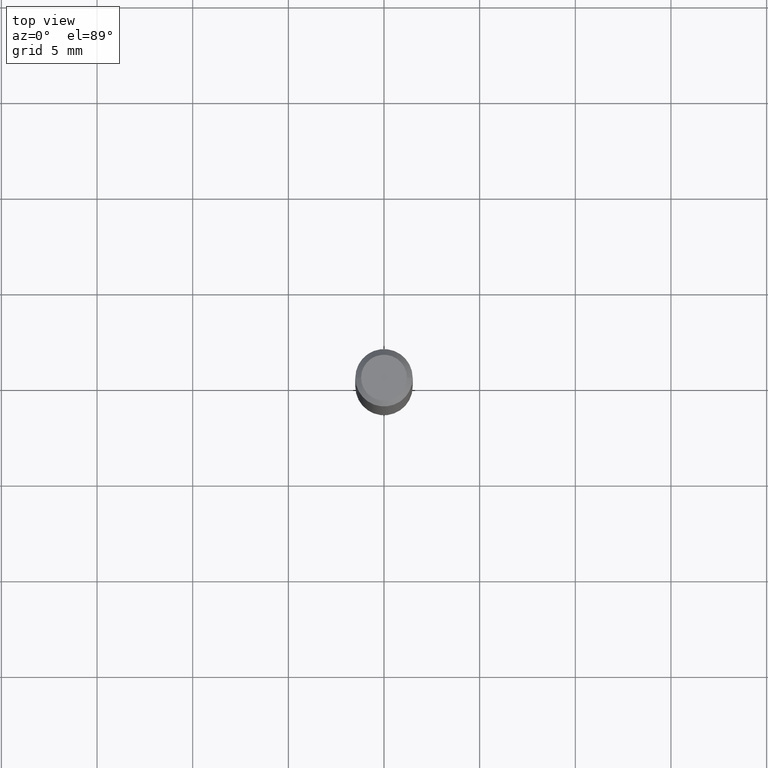
[diagram: clean part render]
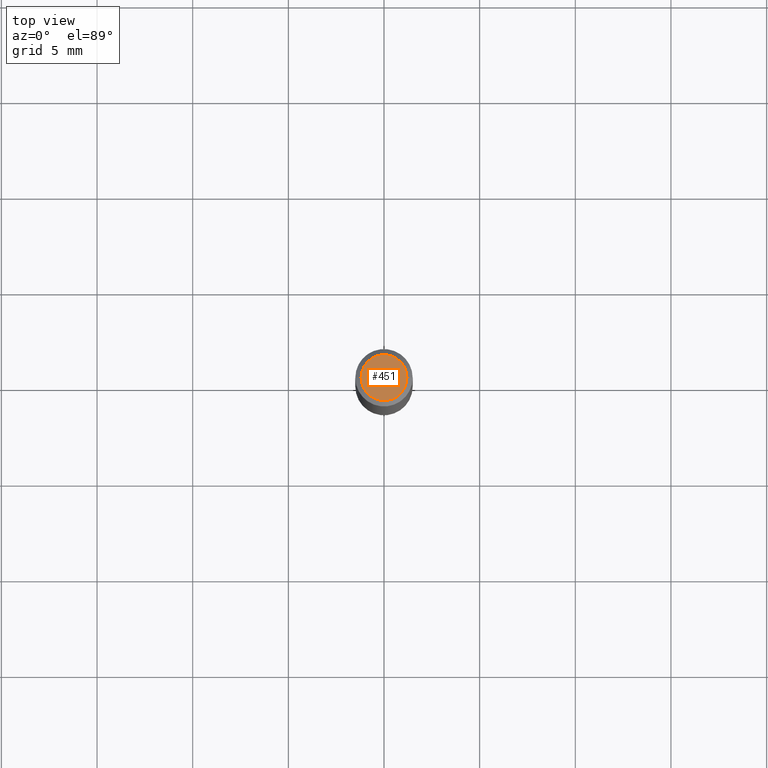
[diagram: same view with one face highlighted and labeled with its STEP entity id]
A machine part, top view. The second image highlights one B-rep face of the part: STEP entity #451.
In plain terms, the highlighted planar face has unit normal (0, -0, -1).
Its self-contained STEP definition (entity closure, byte-faithful):
#21 = CIRCLE ( 'NONE', #333, 0.04724000000000000421 ) ;
#50 = CARTESIAN_POINT ( 'NONE',  ( 8.265746106709734507E-48, -1.180129479067563789E-33, -3.380025165646692144E-19 ) ) ;
#68 = DIRECTION ( 'NONE',  ( -2.445468806185136597E-29, 3.491481338843145583E-15, 1.000000000000000000 ) ) ;
#100 = CARTESIAN_POINT ( 'NONE',  ( -0.04724000000000000421, 3.504923541997677355E-16, -3.380025165670481712E-19 ) ) ;
#123 = EDGE_CURVE ( 'NONE', #327, #424, #21, .T. ) ;
#138 = EDGE_LOOP ( 'NONE', ( #396, #289 ) ) ;
#142 = AXIS2_PLACEMENT_3D ( 'NONE', #191, #149, #488 ) ;
#149 = DIRECTION ( 'NONE',  ( 2.438088387897960049E-29, -3.491481338843145188E-15, -1.000000000000000000 ) ) ;
#151 = CARTESIAN_POINT ( 'NONE',  ( 0.04724000000000000421, -3.852183633974369345E-16, -3.380025165621689721E-19 ) ) ;
#154 = CARTESIAN_POINT ( 'NONE',  ( 8.265746106709734507E-48, -1.180129479067563789E-33, -3.380025165646692144E-19 ) ) ;
#161 = AXIS2_PLACEMENT_3D ( 'NONE', #154, #68, #223 ) ;
#164 = DIRECTION ( 'NONE',  ( 1.000000000000000000, -6.982962677686266711E-15, 4.876185090822587894E-29 ) ) ;
#186 = FACE_OUTER_BOUND ( 'NONE', #138, .T. ) ;
#191 = CARTESIAN_POINT ( 'NONE',  ( 4.132873053354867254E-48, -5.900647395337818946E-34, -1.690012582823346072E-19 ) ) ;
#193 = PLANE ( 'NONE',  #142 ) ;
#223 = DIRECTION ( 'NONE',  ( 1.000000000000000000, -6.982962677686266711E-15, 4.876185090822587894E-29 ) ) ;
#289 = ORIENTED_EDGE ( 'NONE', *, *, #428, .T. ) ;
#327 = VERTEX_POINT ( 'NONE', #100 ) ;
#333 = AXIS2_PLACEMENT_3D ( 'NONE', #50, #374, #164 ) ;
#374 = DIRECTION ( 'NONE',  ( -2.445468806185136597E-29, 3.491481338843145583E-15, 1.000000000000000000 ) ) ;
#396 = ORIENTED_EDGE ( 'NONE', *, *, #123, .T. ) ;
#424 = VERTEX_POINT ( 'NONE', #151 ) ;
#428 = EDGE_CURVE ( 'NONE', #424, #327, #489, .T. ) ;
#451 = ADVANCED_FACE ( 'NONE', ( #186 ), #193, .F. ) ;
#488 = DIRECTION ( 'NONE',  ( -1.000000000000000000, 6.982962677686265922E-15, -4.876176775795935793E-29 ) ) ;
#489 = CIRCLE ( 'NONE', #161, 0.04724000000000000421 ) ;